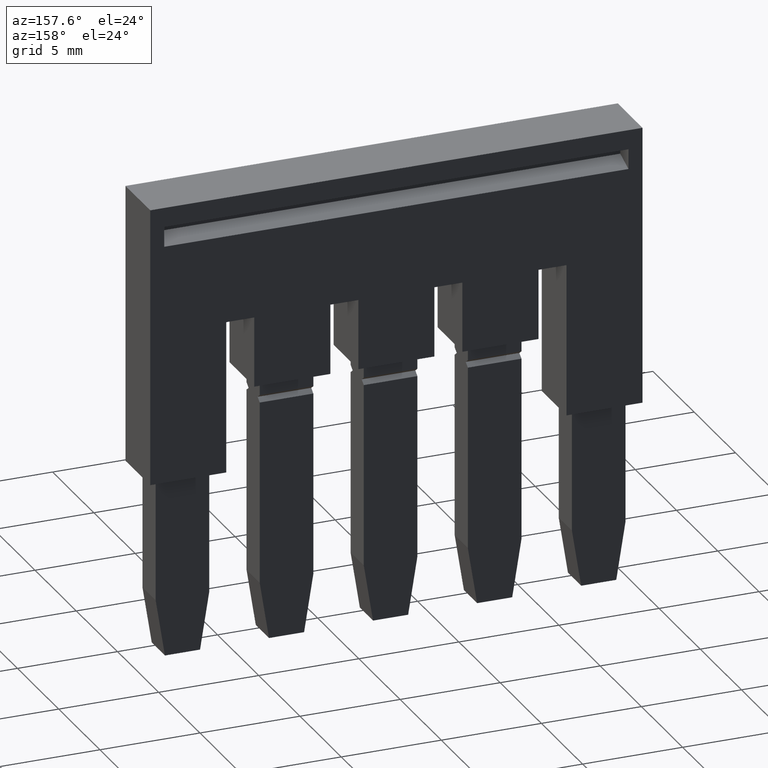
[diagram: clean part render]
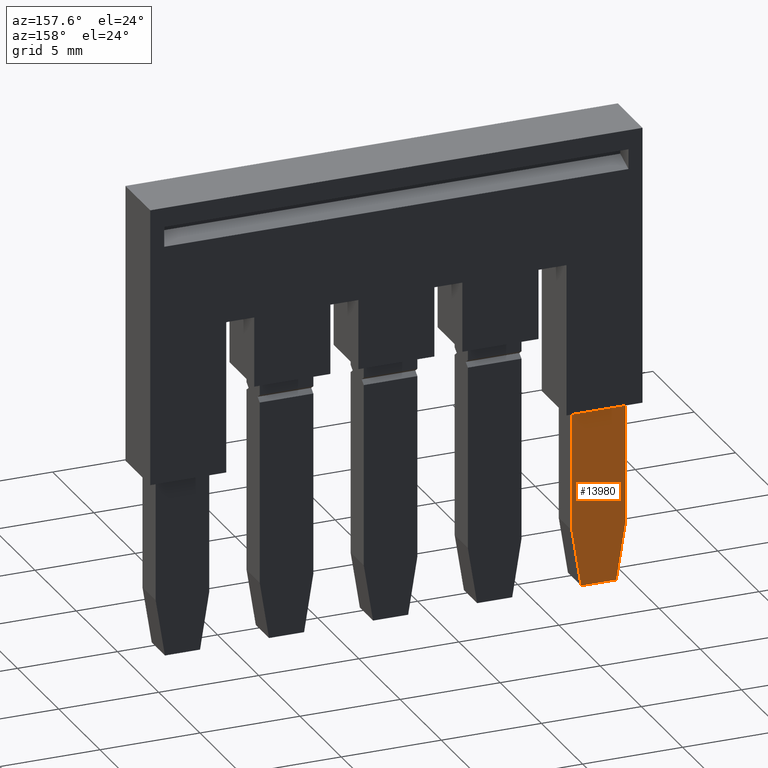
[diagram: same view with one face highlighted and labeled with its STEP entity id]
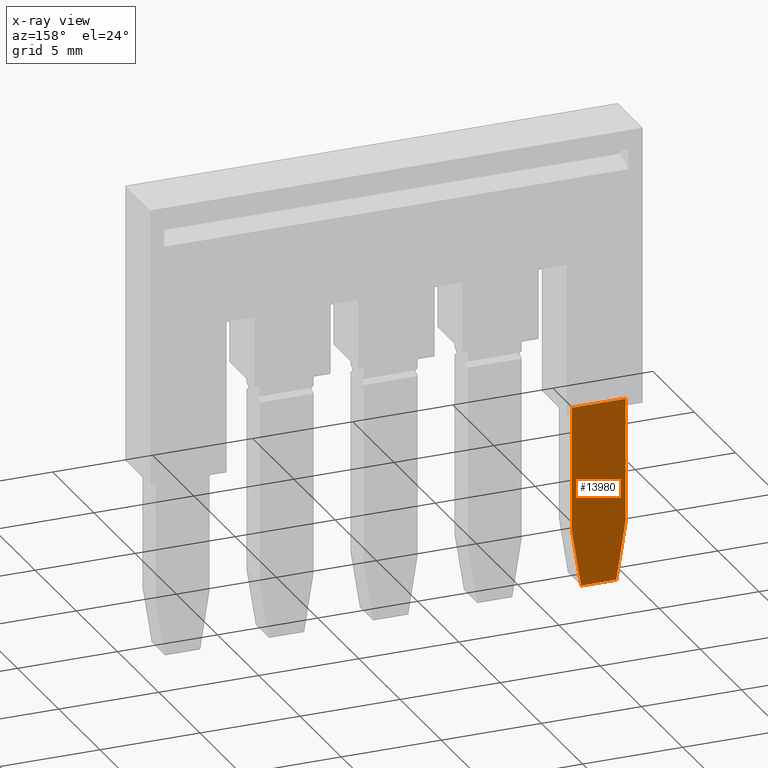
[diagram: x-ray of the same camera — body ghosted, the highlighted face saturated]
A machine part, auxiliary view. The second image highlights one B-rep face of the part: STEP entity #13980.
The next image is the same camera in x-ray: the body ghosted, the highlighted face saturated — about 0% of this face is hidden behind the body in this view.
In plain terms, the highlighted planar face has unit normal (0, -1, 0).
Its self-contained STEP definition (entity closure, byte-faithful):
#12050=CARTESIAN_POINT('',(4.90716722169511,-22.7750000000004,
37.0000000009616));
#12060=VERTEX_POINT('',#12050);
#12230=CARTESIAN_POINT('',(4.90716722169511,-22.7750000000004,
34.3200000009627));
#12240=VERTEX_POINT('',#12230);
#12270=CARTESIAN_POINT('',(4.90716722169511,-22.7750000000004,41.874984)
);
#12280=DIRECTION('',(1.22464679914735E-16,0.,1.));
#12290=VECTOR('',#12280,1.);
#12300=LINE('',#12270,#12290);
#12310=EDGE_CURVE('',#12240,#12060,#12300,.T.);
#12640=CARTESIAN_POINT('',(4.90716722169511,-31.8500000001177,41.874984)
);
#12650=DIRECTION('',(-1.22464679914155E-16,1.79170101017188E-11,-1.));
#12660=VECTOR('',#12650,1.);
#12670=LINE('',#12640,#12660);
#12680=CARTESIAN_POINT('',(4.90716722169511,-31.8500000000221,
36.536810950333));
#12690=VERTEX_POINT('',#12680);
#12700=CARTESIAN_POINT('',(4.90716722169511,-31.8499999999906,
34.7831890515862));
#12710=VERTEX_POINT('',#12700);
#12720=EDGE_CURVE('',#12690,#12710,#12670,.T.);
#13170=CARTESIAN_POINT('',(4.90716722169511,-28.980742062475,
37.0000000009616));
#13180=VERTEX_POINT('',#13170);
#13210=CARTESIAN_POINT('',(4.90716722169511,-12.305124,39.6919725831152)
);
#13220=DIRECTION('',(-1.38777878078145E-17,-0.987219178105449,
-0.159368423411924));
#13230=VECTOR('',#13220,1.);
#13240=LINE('',#13210,#13230);
#13250=EDGE_CURVE('',#13180,#12690,#13240,.T.);
#13500=CARTESIAN_POINT('',(4.90716722169511,-12.305124,37.0000000009616)
);
#13510=DIRECTION('',(-4.93038065763132E-32,-1.,-2.3789721411555E-16));
#13520=VECTOR('',#13510,1.);
#13530=LINE('',#13500,#13520);
#13540=EDGE_CURVE('',#12060,#13180,#13530,.T.);
#13730=CARTESIAN_POINT('',(4.90716722169511,-28.3020042035837,
36.6729573866517));
#13740=DIRECTION('',(-1.,0.,1.22464679914735E-16));
#13750=DIRECTION('',(0.,-1.,0.));
#13760=AXIS2_PLACEMENT_3D('',#13730,#13740,#13750);
#13770=PLANE('',#13760);
#13780=ORIENTED_EDGE('',*,*,#12720,.T.);
#13790=ORIENTED_EDGE('',*,*,#13250,.T.);
#13800=ORIENTED_EDGE('',*,*,#13540,.T.);
#13810=ORIENTED_EDGE('',*,*,#12310,.T.);
#13820=CARTESIAN_POINT('',(4.90716722169511,-12.305124,34.3200000009627)
);
#13830=DIRECTION('',(-4.93038065763132E-32,1.,-2.3789721411555E-16));
#13840=VECTOR('',#13830,1.);
#13850=LINE('',#13820,#13840);
#13860=CARTESIAN_POINT('',(4.90716722169511,-28.9807420624754,
34.3200000009627));
#13870=VERTEX_POINT('',#13860);
#13880=EDGE_CURVE('',#13870,#12240,#13850,.T.);
#13890=ORIENTED_EDGE('',*,*,#13880,.T.);
#13900=CARTESIAN_POINT('',(4.90716722169511,-12.305124,31.6280274188091)
);
#13910=DIRECTION('',(-1.38777878078145E-17,0.987219178105449,
-0.159368423411924));
#13920=VECTOR('',#13910,1.);
#13930=LINE('',#13900,#13920);
#13940=EDGE_CURVE('',#12710,#13870,#13930,.T.);
#13950=ORIENTED_EDGE('',*,*,#13940,.T.);
#13960=EDGE_LOOP('',(#13950,#13890,#13810,#13800,#13790,#13780));
#13970=FACE_OUTER_BOUND('',#13960,.T.);
#13980=ADVANCED_FACE('',(#13970),#13770,.F.);